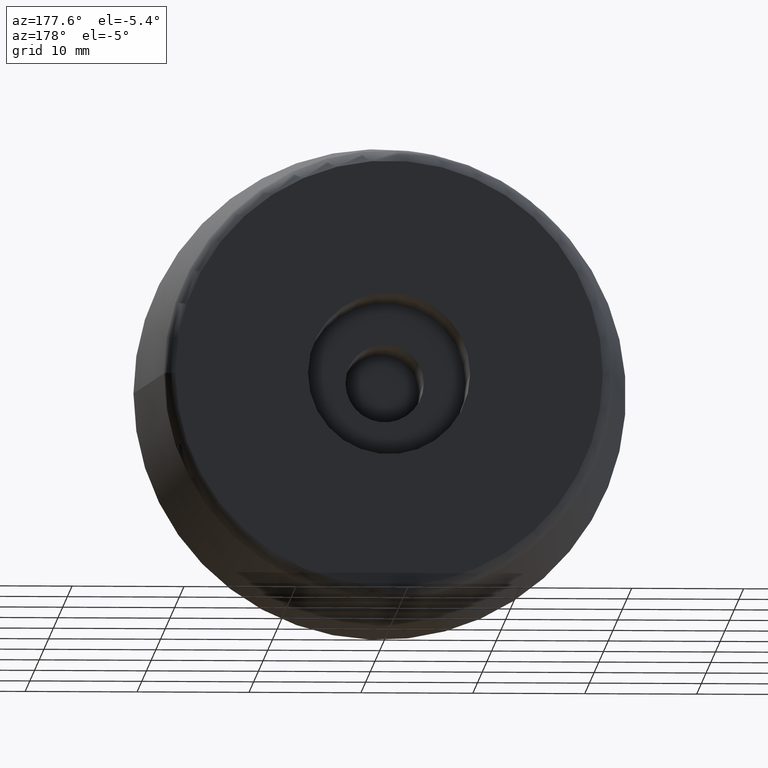
[diagram: clean part render]
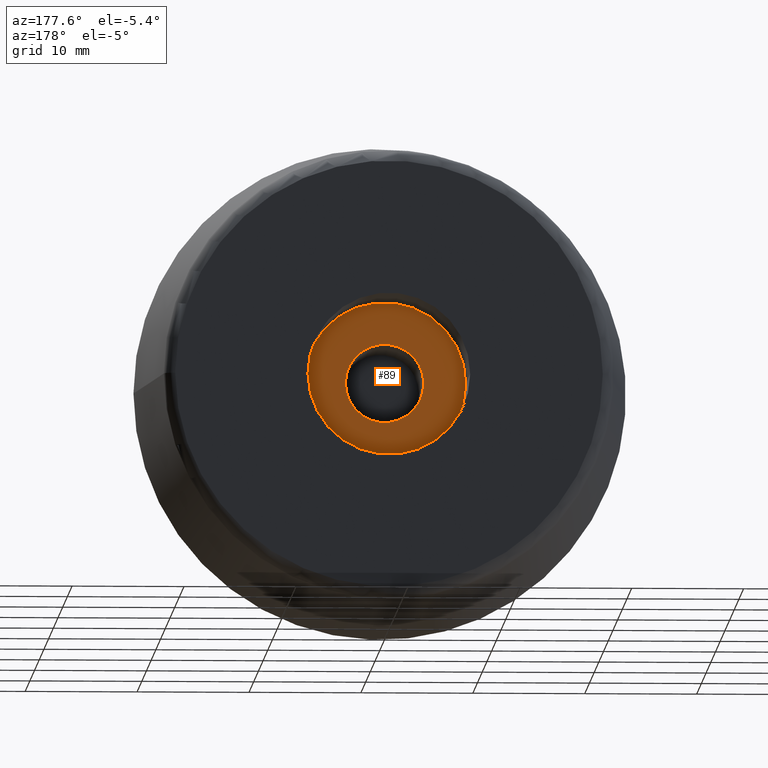
[diagram: same view with one face highlighted and labeled with its STEP entity id]
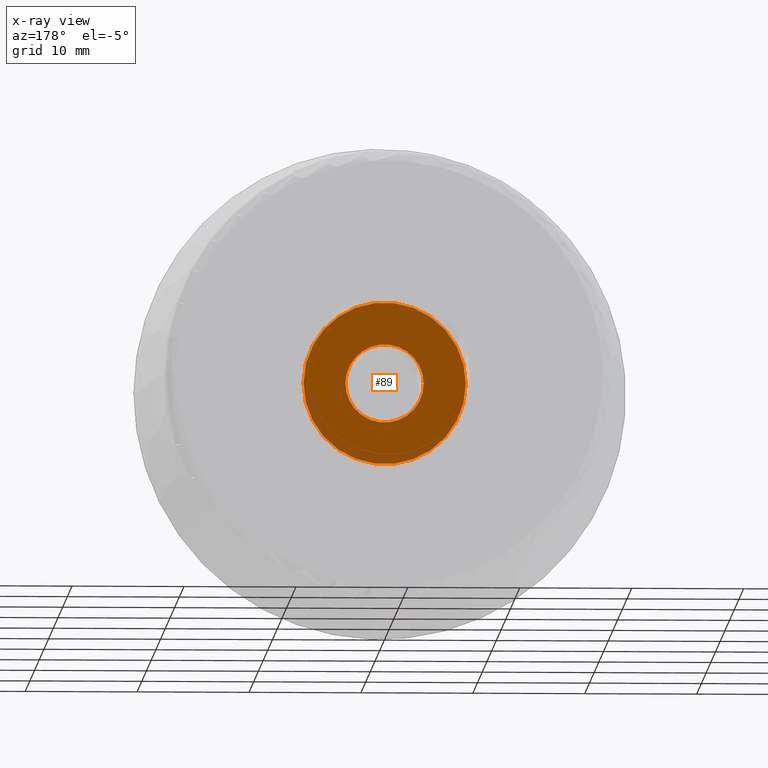
[diagram: x-ray of the same camera — body ghosted, the highlighted face saturated]
A machine part, auxiliary view. The second image highlights one B-rep face of the part: STEP entity #89.
The next image is the same camera in x-ray: the body ghosted, the highlighted face saturated — about 11% of this face is hidden behind the body in this view.
In plain terms, the highlighted planar face has unit normal (0, 1, 0).
Its self-contained STEP definition (entity closure, byte-faithful):
#19=PLANE('',#103);
#25=FACE_BOUND('',#43,.T.);
#31=FACE_OUTER_BOUND('',#42,.T.);
#42=EDGE_LOOP('',(#77));
#43=EDGE_LOOP('',(#78));
#54=CIRCLE('',#104,7.25);
#55=CIRCLE('',#105,3.5);
#61=VERTEX_POINT('',#156);
#62=VERTEX_POINT('',#158);
#68=EDGE_CURVE('',#61,#61,#54,.T.);
#69=EDGE_CURVE('',#62,#62,#55,.T.);
#77=ORIENTED_EDGE('',*,*,#68,.T.);
#78=ORIENTED_EDGE('',*,*,#69,.F.);
#89=ADVANCED_FACE('',(#31,#25),#19,.T.);
#103=AXIS2_PLACEMENT_3D('',#155,#127,#128);
#104=AXIS2_PLACEMENT_3D('',#157,#129,#130);
#105=AXIS2_PLACEMENT_3D('',#159,#131,#132);
#127=DIRECTION('center_axis',(0.,1.,0.));
#128=DIRECTION('ref_axis',(-1.,0.,0.));
#129=DIRECTION('center_axis',(0.,1.,0.));
#130=DIRECTION('ref_axis',(-1.,0.,0.));
#131=DIRECTION('center_axis',(0.,1.,0.));
#132=DIRECTION('ref_axis',(-1.,0.,0.));
#155=CARTESIAN_POINT('Origin',(0.,10.5,0.));
#156=CARTESIAN_POINT('',(-7.25,10.5,0.));
#157=CARTESIAN_POINT('Origin',(0.,10.5,0.));
#158=CARTESIAN_POINT('',(3.5,10.5,-4.28626379701574E-16));
#159=CARTESIAN_POINT('Origin',(0.,10.5,0.));